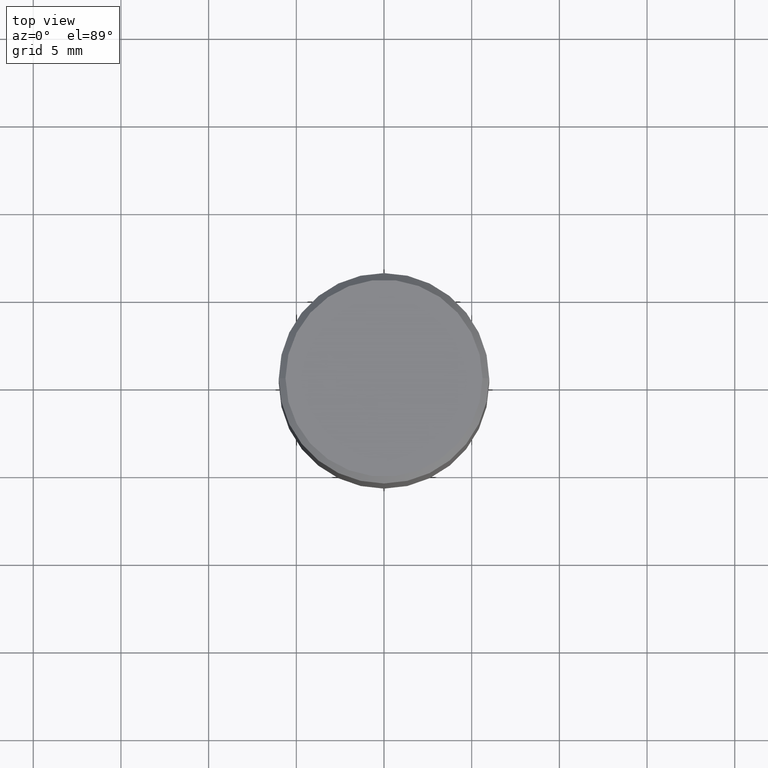
[diagram: clean part render]
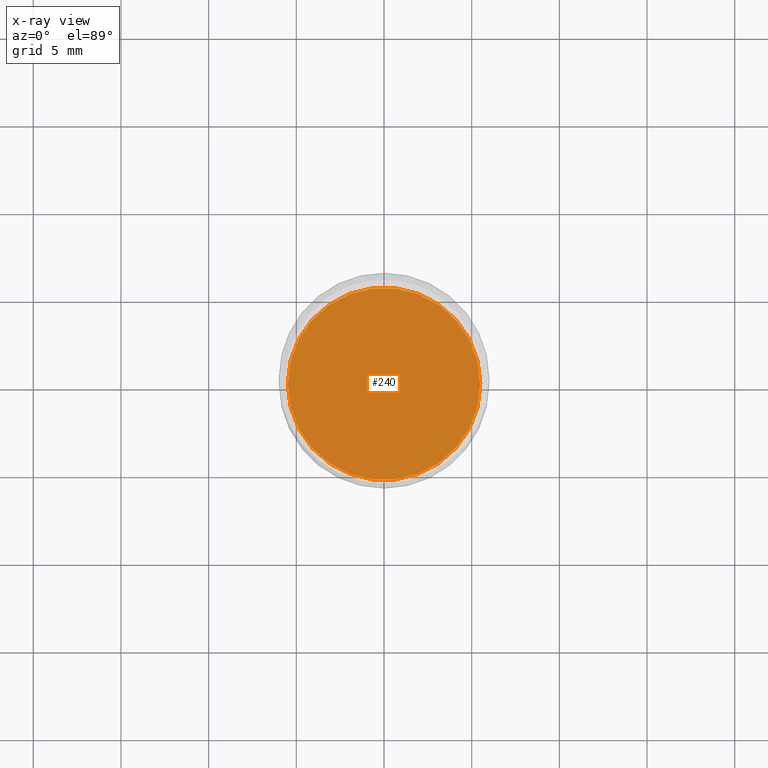
[diagram: x-ray — body ghosted, one internal face saturated and labeled with its STEP entity id]
A machine part, top view, then the same camera in x-ray: the body is ghosted and one INTERNAL B-rep face — a face not visible from any outside direction — is saturated and labeled: STEP entity #240.
In plain terms, the highlighted planar face has unit normal (-0, 0, 1).
Its self-contained STEP definition (entity closure, byte-faithful):
#7 = EDGE_CURVE ( 'NONE', #178, #384, #277, .T. ) ;
#17 = CARTESIAN_POINT ( 'NONE',  ( -0.2160500000000000198, -1.087817159026237112E-15, -0.7519999999999998908 ) ) ;
#71 = DIRECTION ( 'NONE',  ( -2.445468806185136597E-29, 3.491481338843145583E-15, 1.000000000000000000 ) ) ;
#79 = ORIENTED_EDGE ( 'NONE', *, *, #441, .F. ) ;
#80 = DIRECTION ( 'NONE',  ( 1.000000000000000000, -6.982962677686265922E-15, 4.876176775795935793E-29 ) ) ;
#85 = DIRECTION ( 'NONE',  ( 1.000000000000000000, -6.982962677686266711E-15, 0.000000000000000000 ) ) ;
#108 = DIRECTION ( 'NONE',  ( -2.445468806185136597E-29, 3.491481338843145583E-15, 1.000000000000000000 ) ) ;
#125 = FACE_OUTER_BOUND ( 'NONE', #422, .T. ) ;
#144 = DIRECTION ( 'NONE',  ( 1.000000000000000000, -6.982962677686266711E-15, 0.000000000000000000 ) ) ;
#148 = CARTESIAN_POINT ( 'NONE',  ( 1.838992542251222532E-29, -2.625593966810045103E-15, -0.7519999999999998908 ) ) ;
#173 = AXIS2_PLACEMENT_3D ( 'NONE', #148, #108, #144 ) ;
#178 = VERTEX_POINT ( 'NONE', #17 ) ;
#228 = AXIS2_PLACEMENT_3D ( 'NONE', #387, #71, #85 ) ;
#240 = ADVANCED_FACE ( 'NONE', ( #125 ), #261, .F. ) ;
#250 = CARTESIAN_POINT ( 'NONE',  ( 0.2160500000000000198, -4.134263053324163313E-15, -0.7519999999999998908 ) ) ;
#260 = DIRECTION ( 'NONE',  ( -2.438088387897960049E-29, 3.491481338843145188E-15, 1.000000000000000000 ) ) ;
#261 = PLANE ( 'NONE',  #396 ) ;
#272 = ORIENTED_EDGE ( 'NONE', *, *, #7, .F. ) ;
#277 = CIRCLE ( 'NONE', #173, 0.2160500000000000198 ) ;
#315 = CIRCLE ( 'NONE', #228, 0.2160500000000000198 ) ;
#371 = CARTESIAN_POINT ( 'NONE',  ( 1.838992542251222813E-29, -2.625593966810045497E-15, -0.7520000000000001128 ) ) ;
#384 = VERTEX_POINT ( 'NONE', #250 ) ;
#387 = CARTESIAN_POINT ( 'NONE',  ( 1.838992542251222532E-29, -2.625593966810045103E-15, -0.7519999999999998908 ) ) ;
#396 = AXIS2_PLACEMENT_3D ( 'NONE', #371, #260, #80 ) ;
#422 = EDGE_LOOP ( 'NONE', ( #79, #272 ) ) ;
#441 = EDGE_CURVE ( 'NONE', #384, #178, #315, .T. ) ;